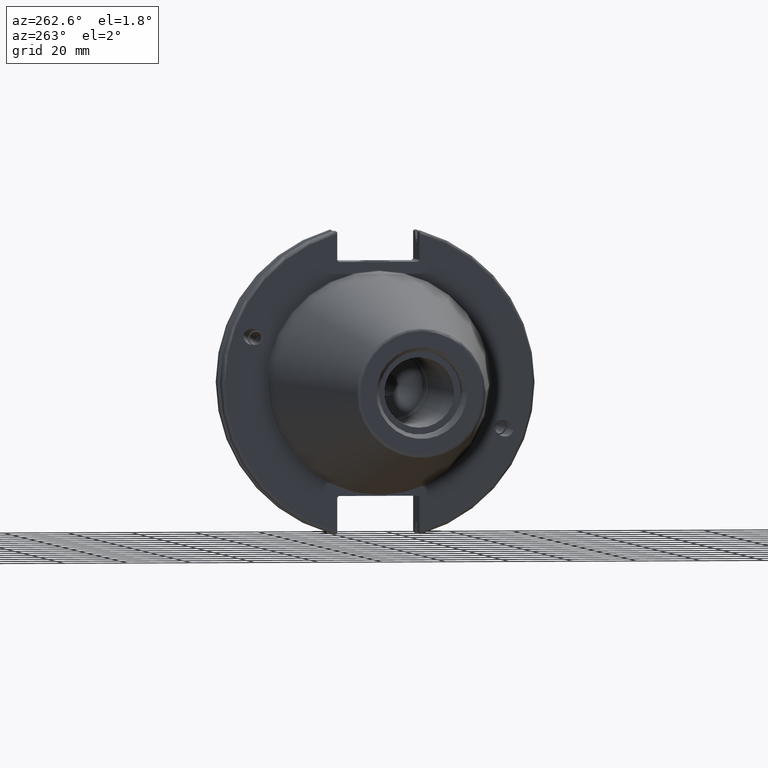
[diagram: clean part render]
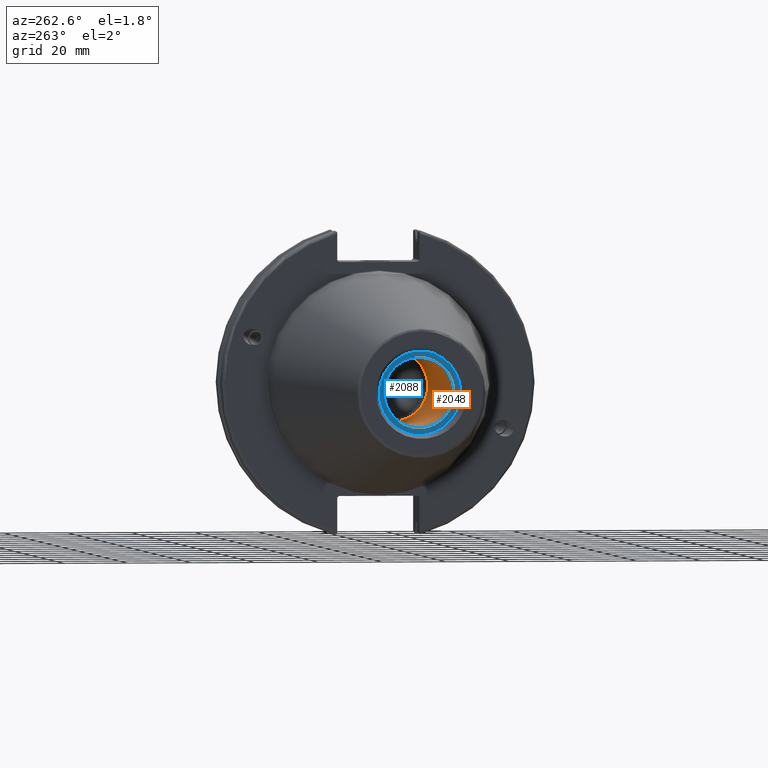
[diagram: same view with the hole feature highlighted: cylindrical wall and planar end face, labeled with their STEP entity ids]
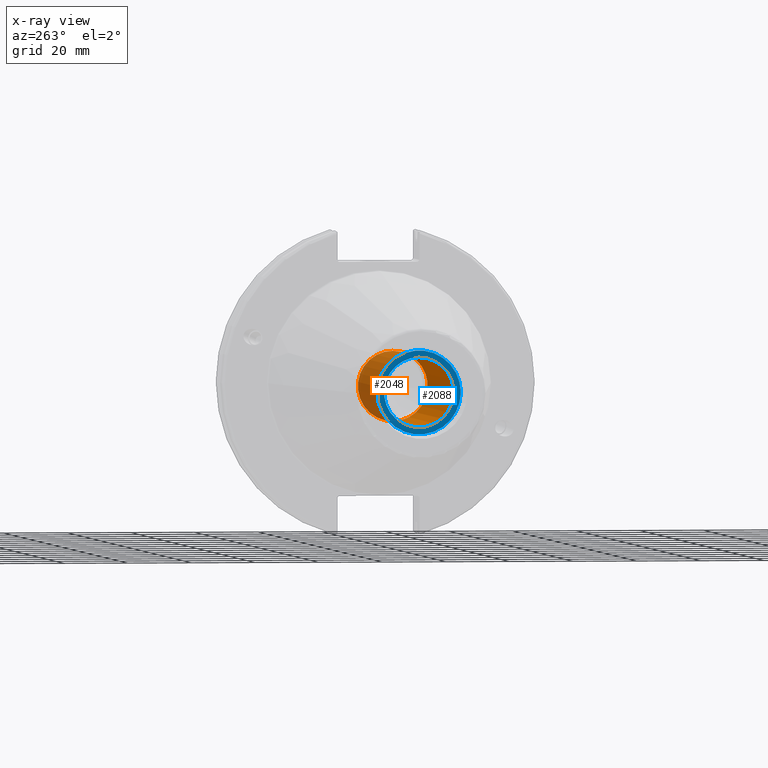
[diagram: x-ray of the same camera — body ghosted, the hole faces saturated]
A machine part, auxiliary view. The highlighted faces form one hole feature of diameter 21.971 mm: the cylindrical wall (entity #2048, orange) and its adjacent planar end face (entity #2088, blue) — they share a circular edge in the B-rep.
The next image is the same camera in x-ray (body ghosted, the hole faces saturated) — the bore reads through the body.
Wall:
#217=FACE_OUTER_BOUND('',#332,.T.);
#332=EDGE_LOOP('',(#1675,#1676,#1677,#1678,#1679));
#428=LINE('',#3810,#529);
#529=VECTOR('',#2792,10.9855);
#709=CIRCLE('',#2293,10.9855);
#710=CIRCLE('',#2294,10.9855);
#711=CIRCLE('',#2296,10.9855);
#906=VERTEX_POINT('',#3802);
#907=VERTEX_POINT('',#3803);
#908=VERTEX_POINT('',#3808);
#1184=EDGE_CURVE('',#906,#907,#709,.T.);
#1186=EDGE_CURVE('',#907,#906,#710,.T.);
#1187=EDGE_CURVE('',#908,#908,#711,.T.);
#1188=EDGE_CURVE('',#908,#907,#428,.T.);
#1675=ORIENTED_EDGE('',*,*,#1187,.F.);
#1676=ORIENTED_EDGE('',*,*,#1188,.T.);
#1677=ORIENTED_EDGE('',*,*,#1184,.F.);
#1678=ORIENTED_EDGE('',*,*,#1186,.F.);
#1679=ORIENTED_EDGE('',*,*,#1188,.F.);
#1984=CYLINDRICAL_SURFACE('',#2295,10.9855);
#2048=ADVANCED_FACE('',(#217),#1984,.F.);
#2293=AXIS2_PLACEMENT_3D('',#3804,#2783,#2784);
#2294=AXIS2_PLACEMENT_3D('',#3806,#2786,#2787);
#2295=AXIS2_PLACEMENT_3D('',#3807,#2788,#2789);
#2296=AXIS2_PLACEMENT_3D('',#3809,#2790,#2791);
#2783=DIRECTION('center_axis',(-1.,0.,0.));
#2784=DIRECTION('ref_axis',(0.,0.,1.));
#2786=DIRECTION('center_axis',(-1.,0.,0.));
#2787=DIRECTION('ref_axis',(0.,0.,1.));
#2788=DIRECTION('center_axis',(-1.,0.,0.));
#2789=DIRECTION('ref_axis',(0.,0.,1.));
#2790=DIRECTION('center_axis',(1.,0.,0.));
#2791=DIRECTION('ref_axis',(0.,0.,1.));
#2792=DIRECTION('',(1.,0.,0.));
#3802=CARTESIAN_POINT('',(-31.6,0.,10.9855));
#3803=CARTESIAN_POINT('',(-31.6,-1.34533574120333E-15,-10.9855));
#3804=CARTESIAN_POINT('Origin',(-31.6,0.,0.));
#3806=CARTESIAN_POINT('Origin',(-31.6,0.,0.));
#3807=CARTESIAN_POINT('Origin',(-66.6,0.,0.));
#3808=CARTESIAN_POINT('',(-95.25,1.34533574120333E-15,-10.9855));
#3809=CARTESIAN_POINT('Origin',(-95.25,0.,0.));
#3810=CARTESIAN_POINT('',(-66.6,-1.34533574120333E-15,-10.9855));
End face:
#67=PLANE('',#2371);
#122=FACE_BOUND('',#378,.T.);
#257=FACE_OUTER_BOUND('',#377,.T.);
#377=EDGE_LOOP('',(#1922,#1923));
#378=EDGE_LOOP('',(#1924));
#711=CIRCLE('',#2296,10.9855);
#747=CIRCLE('',#2372,13.1);
#748=CIRCLE('',#2373,13.1);
#908=VERTEX_POINT('',#3808);
#984=VERTEX_POINT('',#4152);
#985=VERTEX_POINT('',#4153);
#1187=EDGE_CURVE('',#908,#908,#711,.T.);
#1303=EDGE_CURVE('',#984,#985,#747,.T.);
#1304=EDGE_CURVE('',#985,#984,#748,.T.);
#1922=ORIENTED_EDGE('',*,*,#1303,.F.);
#1923=ORIENTED_EDGE('',*,*,#1304,.F.);
#1924=ORIENTED_EDGE('',*,*,#1187,.T.);
#2088=ADVANCED_FACE('',(#257,#122),#67,.T.);
#2296=AXIS2_PLACEMENT_3D('',#3809,#2790,#2791);
#2371=AXIS2_PLACEMENT_3D('',#4151,#2996,#2997);
#2372=AXIS2_PLACEMENT_3D('',#4154,#2998,#2999);
#2373=AXIS2_PLACEMENT_3D('',#4155,#3000,#3001);
#2790=DIRECTION('center_axis',(1.,0.,0.));
#2791=DIRECTION('ref_axis',(0.,0.,1.));
#2996=DIRECTION('center_axis',(-1.,0.,0.));
#2997=DIRECTION('ref_axis',(0.,0.,1.));
#2998=DIRECTION('center_axis',(1.,0.,0.));
#2999=DIRECTION('ref_axis',(0.,0.,-1.));
#3000=DIRECTION('center_axis',(1.,0.,0.));
#3001=DIRECTION('ref_axis',(0.,0.,-1.));
#3808=CARTESIAN_POINT('',(-95.25,1.34533574120333E-15,-10.9855));
#3809=CARTESIAN_POINT('Origin',(-95.25,0.,0.));
#4151=CARTESIAN_POINT('Origin',(-95.25,13.1,0.));
#4152=CARTESIAN_POINT('',(-95.25,13.1,0.));
#4153=CARTESIAN_POINT('',(-95.25,-13.1,-1.60428730688303E-15));
#4154=CARTESIAN_POINT('Origin',(-95.25,0.,0.));
#4155=CARTESIAN_POINT('Origin',(-95.25,0.,0.));